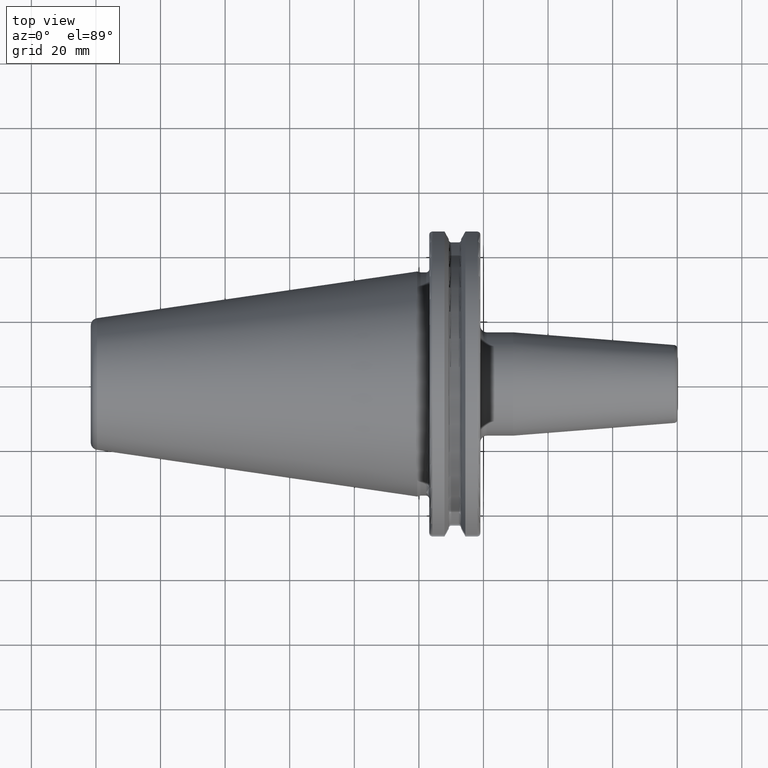
[diagram: clean part render]
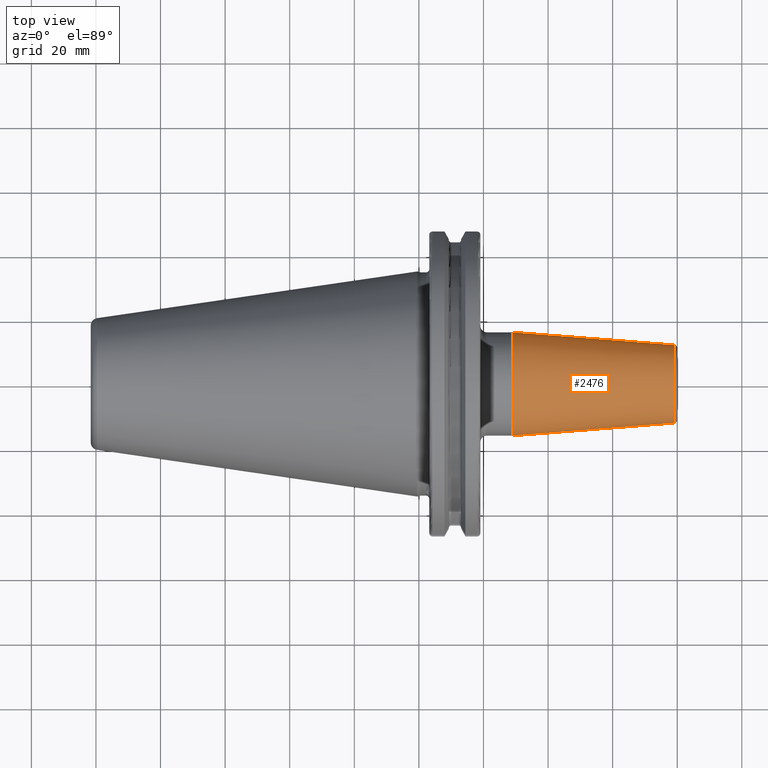
[diagram: same view with one face highlighted and labeled with its STEP entity id]
A machine part, top view. The second image highlights one B-rep face of the part: STEP entity #2476.
In plain terms, the highlighted conical surface has half-angle 4.5 deg.
Its self-contained STEP definition (entity closure, byte-faithful):
#911=CARTESIAN_POINT('',(2.917518105530E1,0.E0,0.E0));
#912=DIRECTION('',(1.E0,0.E0,0.E0));
#913=DIRECTION('',(0.E0,1.E0,0.E0));
#914=AXIS2_PLACEMENT_3D('',#911,#912,#913);
#939=DIRECTION('',(-9.969173337331E-1,7.845909572785E-2,1.098899895590E-13));
#940=VECTOR('',#939,5.005758888107E1);
#941=CARTESIAN_POINT('',(7.907845909573E1,1.207252684207E1,
-5.498868484609E-12));
#942=LINE('',#941,#940);
#943=DIRECTION('',(-9.969173337331E-1,-7.845909572785E-2,-1.098827443910E-13));
#944=VECTOR('',#943,5.005758888107E1);
#945=CARTESIAN_POINT('',(7.907845909573E1,-1.207252684207E1,
5.498505808969E-12));
#946=LINE('',#945,#944);
#957=CARTESIAN_POINT('',(7.907845909573E1,0.E0,0.E0));
#958=DIRECTION('',(-1.E0,0.E0,0.E0));
#959=DIRECTION('',(0.E0,-1.E0,0.E0));
#960=AXIS2_PLACEMENT_3D('',#957,#958,#959);
#1432=CARTESIAN_POINT('',(2.917518105530E1,1.6E1,0.E0));
#1433=CARTESIAN_POINT('',(2.917518105530E1,-1.6E1,0.E0));
#1434=VERTEX_POINT('',#1432);
#1435=VERTEX_POINT('',#1433);
#1436=CARTESIAN_POINT('',(7.907845909573E1,1.207252684207E1,0.E0));
#1437=CARTESIAN_POINT('',(7.907845909573E1,-1.207252684207E1,0.E0));
#1438=VERTEX_POINT('',#1436);
#1439=VERTEX_POINT('',#1437);
#2465=CARTESIAN_POINT('',(5.412682007551E1,0.E0,0.E0));
#2466=DIRECTION('',(-1.E0,0.E0,0.E0));
#2467=DIRECTION('',(0.E0,1.E0,0.E0));
#2468=AXIS2_PLACEMENT_3D('',#2465,#2466,#2467);
#2469=CONICAL_SURFACE('',#2468,1.403626342104E1,4.5E0);
#2470=ORIENTED_EDGE('',*,*,#2456,.F.);
#2471=ORIENTED_EDGE('',*,*,#2431,.T.);
#2472=ORIENTED_EDGE('',*,*,#2401,.F.);
#2473=ORIENTED_EDGE('',*,*,#2428,.F.);
#2474=EDGE_LOOP('',(#2470,#2471,#2472,#2473));
#2475=FACE_OUTER_BOUND('',#2474,.F.);
#2476=ADVANCED_FACE('',(#2475),#2469,.T.);
#915=CIRCLE('',#914,1.6E1);
#961=CIRCLE('',#960,1.207252684207E1);
#2401=EDGE_CURVE('',#1434,#1435,#915,.T.);
#2428=EDGE_CURVE('',#1438,#1434,#942,.T.);
#2431=EDGE_CURVE('',#1439,#1435,#946,.T.);
#2456=EDGE_CURVE('',#1439,#1438,#961,.T.);